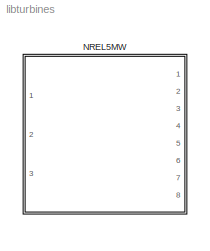
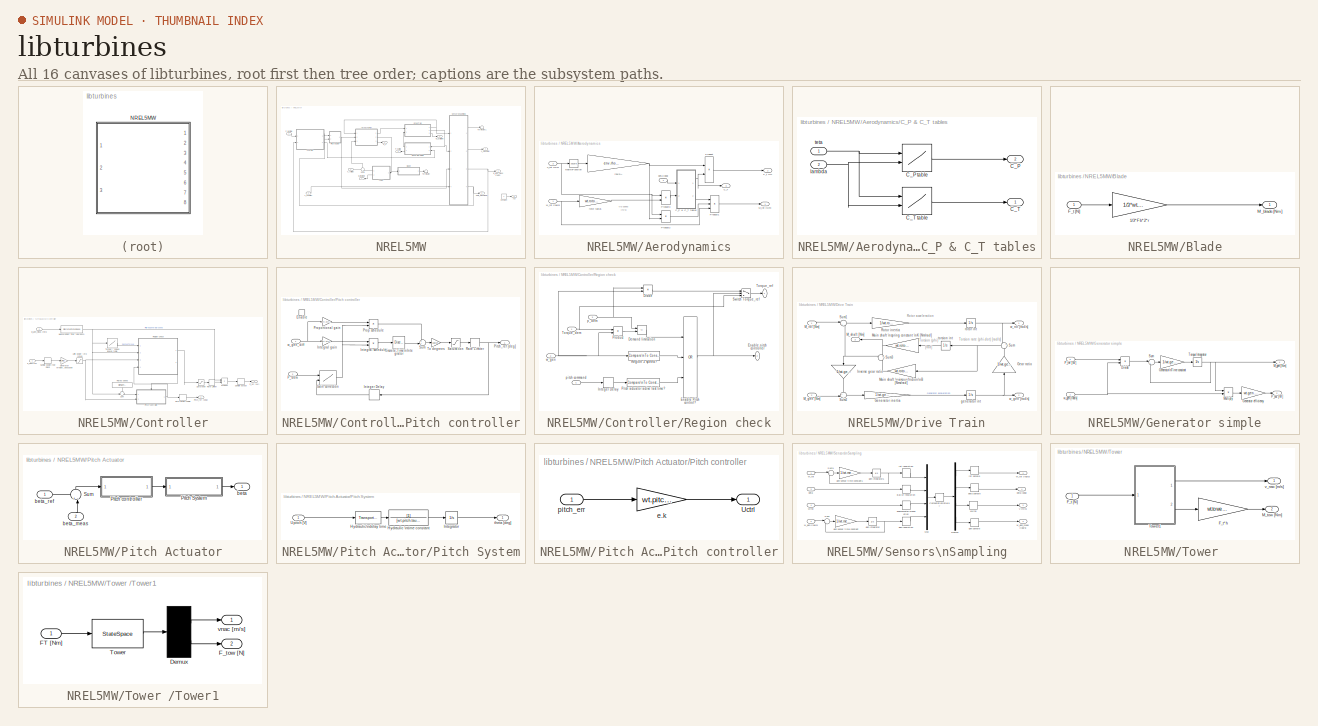
[diagram: thumbnail index - all 16 canvases of the model, root first then tree order]
MODEL libturbines
KIND library
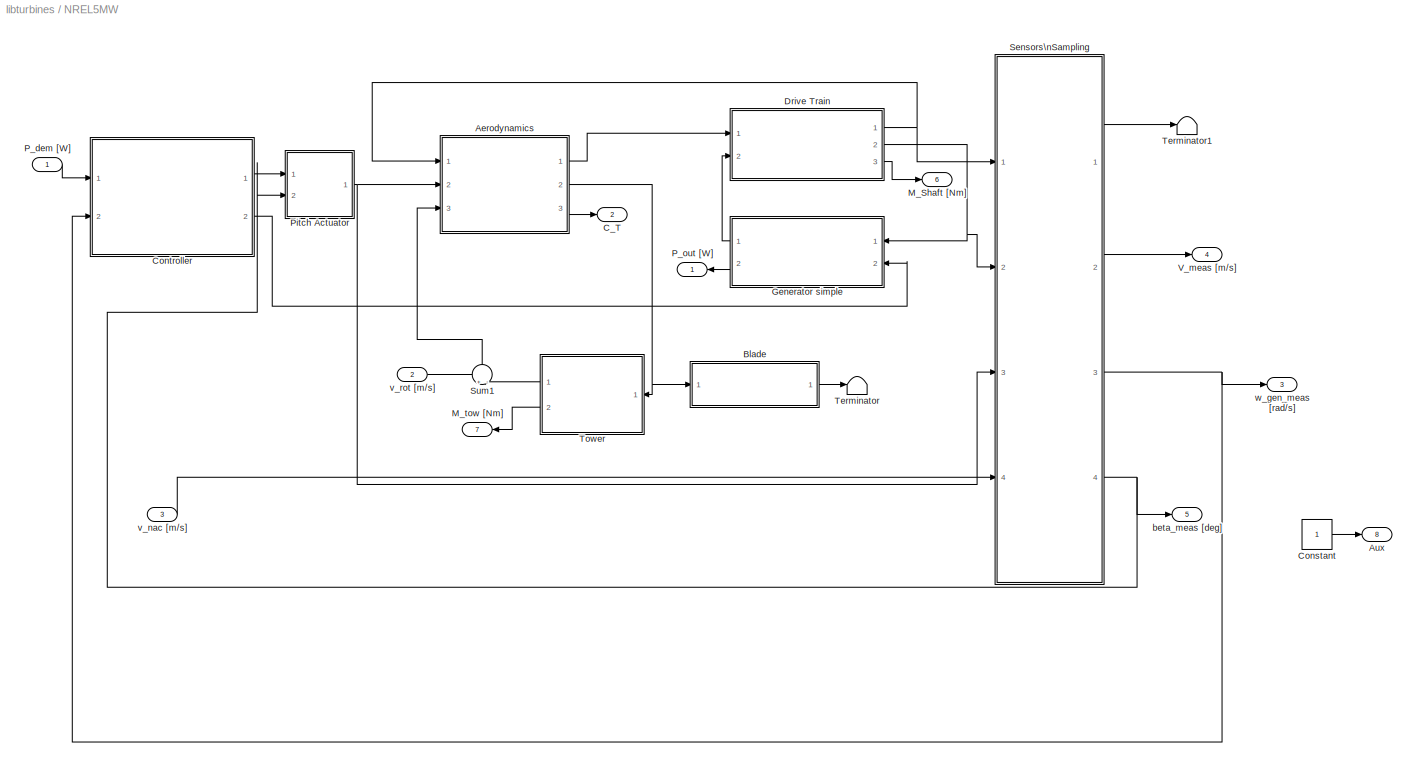
BLOCK [SubSystem] NREL5MW
  FunctionWithSeparateData = off
  MaskCallbackString = |||
  MaskDescription = NREL 5MW Virtual Turbine
  MaskDisplay = image(imread('NREL.png'))\n\nport_label('output',1,'P [W]')\nport_label('output',2,'CT')\nport_label('output',3,'w_gen [rad/s]')\nport_label('output',4,'v_nac [m/s]')\nport_label('output',5,'pitch [deg]')\nport_label('output',6,'M_shaft [Nm]')\nport_label('output',7,'M_tow [Nm]')\nport_label('output',8,'Aux')\n\nport_label('input',1,'P_max [W]')\nport_label('input',2,'v_rot [m/s]')\nport_label('in...<+25ch>
  MaskEnableString = on,on,on,on
  MaskHideContents = off
  MaskIconFrame = on
  MaskIconOpaque = on
  MaskIconRotate = none
  MaskIconUnits = autoscale
  MaskInitialization = %l=load(file);\nl=get_param(gcb,'UserData');\nenv=l.env;\nwt=l.wt;\nwt.ctrl.gen.ini=w_gen_ini;\n\n\nif(auto)\n    wt.ctrl.torq.ini=min(interp1(wt.ctrl.torq.wg,wt.ctrl.torq.M,w_gen_ini,'spline'),wt.ctrl.torq.lim);\nelse\n    wt.ctrl.torq.ini=torq_ini;\nend\n\nwt.pitch.ini=beta_ini;\nwt.ctrl.pitch.ini=beta_ini;\nwt.gen.torq.ini=wt.ctrl.torq.ini;\nwt.gen.ini=w_gen_ini;\nwt.rotor.ini=w_gen_ini/wt.gen....<+4ch>
  MaskPortRotate = default
  MaskPromptString = Initial generator velocity  [rad/s]|Initial blade pitch [degrees]|Auto initial torque|Initial generator torque
  MaskStyleString = edit,edit,checkbox,edit
  MaskToolTipString = on,on,on,on
  MaskTunableValueString = on,on,on,on
  MaskType = Wind Turbine
  MaskValueString = 50|0|off|0
  MaskVariables = w_gen_ini=@1;beta_ini=@2;auto=@3;torq_ini=@4;
  MaskVisibilityString = on,on,on,on
  MinAlgLoopOccurrences = off
  Opaque = off
  Ports = [3, 8]
  PropExecContextOutsideSubsystem = off
  RTWSystemCode = Auto
  RequestExecContextInheritance = off
  SID = 1
  UserData = DataTag0
  UserDataPersistent = on
BLOCK [SubSystem] NREL5MW/Aerodynamics
  FunctionWithSeparateData = off
  MaskHideContents = off
  MinAlgLoopOccurrences = off
  Opaque = off
  Ports = [3, 3]
  PropExecContextOutsideSubsystem = off
  RTWSystemCode = Auto
  RequestExecContextInheritance = off
  SID = 5
BLOCK [SubSystem] NREL5MW/Aerodynamics/C_P & C_T tables
  FunctionWithSeparateData = off
  MaskHideContents = off
  MinAlgLoopOccurrences = off
  Opaque = off
  Ports = [2, 2]
  PropExecContextOutsideSubsystem = off
  RTWSystemCode = Auto
  RequestExecContextInheritance = off
  SID = 9
BLOCK [Outport] NREL5MW/Aerodynamics/C_P & C_T tables/C_P
  IconDisplay = Port number
  Port = 2
  SID = 15
BLOCK [Lookup2D] NREL5MW/Aerodynamics/C_P & C_T tables/C_P table 
  ColumnIndex = wt.cp.tsr
  LookUpMeth = Interpolation-Use End Values
  RowIndex = wt.cp.beta
  SID = 12
  Table = wt.cp.table
BLOCK [Outport] NREL5MW/Aerodynamics/C_P & C_T tables/C_T
  IconDisplay = Port number
  SID = 14
BLOCK [Lookup2D] NREL5MW/Aerodynamics/C_P & C_T tables/C_T table
  ColumnIndex = wt.ct.tsr
  LookUpMeth = Interpolation-Use End Values
  RowIndex = wt.ct.beta
  SID = 13
  Table = wt.ct.table
BLOCK [Inport] NREL5MW/Aerodynamics/C_P & C_T tables/lambda
  IconDisplay = Port number
  Port = 2
  SID = 11
BLOCK [Inport] NREL5MW/Aerodynamics/C_P & C_T tables/teta
  IconDisplay = Port number
  SID = 10
BLOCK [Outport] NREL5MW/Aerodynamics/C_T
  IconDisplay = Port number
  Port = 3
  SID = 25
BLOCK [Outport] NREL5MW/Aerodynamics/F_t [N]
  IconDisplay = Port number
  Port = 2
  SID = 24
BLOCK [Outport] NREL5MW/Aerodynamics/M_rot [Nm]
  IconDisplay = Port number
  SID = 23
BLOCK [Math] NREL5MW/Aerodynamics/Math\nFunction
  Operator = square
  Ports = [1, 1]
  SID = 16
BLOCK [Product] NREL5MW/Aerodynamics/Product
  Ports = [2, 1]
  RndMeth = Floor
  SID = 17
BLOCK [Product] NREL5MW/Aerodynamics/Product1
  Inputs = **/
  Ports = [3, 1]
  RndMeth = Floor
  SID = 18
BLOCK [Product] NREL5MW/Aerodynamics/Product2
  Ports = [2, 1]
  RndMeth = Floor
  SID = 19
BLOCK [Product] NREL5MW/Aerodynamics/Product3
  Inputs = /*
  Ports = [2, 1]
  RndMeth = Floor
  SID = 20
BLOCK [Inport] NREL5MW/Aerodynamics/beta [deg]
  IconDisplay = Port number
  Port = 2
  SID = 7
BLOCK [Gain] NREL5MW/Aerodynamics/rho//2*A
  Gain = env.rho*.5* pi * wt.rotor.radius^2
  SID = 21
BLOCK [Gain] NREL5MW/Aerodynamics/rotor radius
  Gain = wt.rotor.radius
  SID = 22
BLOCK [Inport] NREL5MW/Aerodynamics/v_rot [m//s]
  IconDisplay = Port number
  Port = 3
  SID = 8
BLOCK [Inport] NREL5MW/Aerodynamics/w_rot [rad//s]
  IconDisplay = Port number
  SID = 6
BLOCK [Outport] NREL5MW/Aux
  IconDisplay = Port number
  Port = 8
  SID = 175
BLOCK [SubSystem] NREL5MW/Blade
  FunctionWithSeparateData = off
  MaskHideContents = off
  MinAlgLoopOccurrences = off
  Opaque = off
  Ports = [1, 1]
  PropExecContextOutsideSubsystem = off
  RTWSystemCode = Auto
  RequestExecContextInheritance = off
  SID = 27
BLOCK [Gain] NREL5MW/Blade/1//3*Fb*2*r
  Gain = 1/3*wt.rotor.radius*2
  SID = 29
BLOCK [Inport] NREL5MW/Blade/F_t [N]
  IconDisplay = Port number
  SID = 28
BLOCK [Outport] NREL5MW/Blade/M_blade [Nm]
  IconDisplay = Port number
  SID = 30
BLOCK [Outport] NREL5MW/C_T
  IconDisplay = Port number
  Port = 2
  SID = 169
BLOCK [Constant] NREL5MW/Constant
  SID = 31
BLOCK [SubSystem] NREL5MW/Controller
  FunctionWithSeparateData = off
  MaskHideContents = off
  MinAlgLoopOccurrences = off
  Opaque = off
  Ports = [2, 2]
  PropExecContextOutsideSubsystem = off
  RTWSystemCode = Auto
  RequestExecContextInheritance = off
  SID = 32
BLOCK [Gain] NREL5MW/Controller/Generator efficiency \ncompensation
  Gain = 1/wt.ctrl.gen.effeciency
  OutDataTypeStr = Inherit: Inherit via internal rule
  ParamDataTypeStr = Inherit: Inherit via internal rule
  SID = 35
  SaturateOnIntegerOverflow = off
BLOCK [Saturate] NREL5MW/Controller/Limit power \nto rated
  InputPortMap = u0
  LowerLimit = 0
  Ports = [1, 1]
  SID = 36
  UpperLimit = wt.ctrl.p_rated
BLOCK [DiscreteStateSpace] NREL5MW/Controller/Measurement filter (low pass)
  A = wt.ctrl.alpha
  B = 1-wt.ctrl.alpha
  C = wt.ctrl.alpha
  D = 1-wt.ctrl.alpha
  SID = 37
  SampleTime = wt.ctrl.Ts
  X0 = wt.ctrl.gen.ini
BLOCK [Inport] NREL5MW/Controller/P_dem [W]
  IconDisplay = Port number
  SID = 33
BLOCK [Outport] NREL5MW/Controller/P_ref [W]
  IconDisplay = Port number
  Port = 2
  SID = 79
BLOCK [SubSystem] NREL5MW/Controller/Pitch controller
  FunctionWithSeparateData = off
  MaskHideContents = off
  MinAlgLoopOccurrences = off
  Opaque = off
  Ports = [2, 1, 1]
  PropExecContextOutsideSubsystem = off
  RTWSystemCode = Auto
  RequestExecContextInheritance = off
  SID = 38
  TreatAsAtomicUnit = on
BLOCK [DiscreteIntegrator] NREL5MW/Controller/Pitch controller/Discrete-Time\nIntegrator
  ICPrevOutput = DiscIntNeverNeededParam
  ICPrevScaledInput = DiscIntNeverNeededParam
  LimitOutput = on
  LowerSaturationLimit = wt.ctrl.pitch.llim
  Ports = [1, 1]
  SID = 42
  SampleTime = wt.ctrl.Ts
  UpperSaturationLimit = wt.ctrl.pitch.ulim*pi/180
BLOCK [EnablePort] NREL5MW/Controller/Pitch controller/Enable
  Ports = []
  PropagateVarSize = During execution
  SID = 41
  StatesWhenEnabling = reset
BLOCK [Lookup2D] NREL5MW/Controller/Pitch controller/Gain correction
  ColumnIndex = wt.ctrl.pitch.beta
  InputSameDT = off
  LookUpMeth = Interpolation-Use End Values
  RowIndex = wt.ctrl.pitch.pwr
  SID = 43
  SaturateOnIntegerOverflow = off
  Table = wt.ctrl.pitch.gs
BLOCK [Delay] NREL5MW/Controller/Pitch controller/Integer Delay
  DelayLength = 1
  InputPortMap = u0
  InputProcessing = Inherited
  Ports = [1, 1]
  SID = 44
BLOCK [Gain] NREL5MW/Controller/Pitch controller/Integral gain
  Gain = wt.ctrl.pitch.Igain
  OutDataTypeStr = Inherit: Inherit via internal rule
  ParamDataTypeStr = Inherit: Inherit via internal rule
  SID = 45
  SaturateOnIntegerOverflow = off
BLOCK [Product] NREL5MW/Controller/Pitch controller/Integral schedule
  InputSameDT = off
  Inputs = */
  OutDataTypeStr = Inherit: Inherit via internal rule
  Ports = [2, 1]
  SID = 46
  SaturateOnIntegerOverflow = off
BLOCK [Inport] NREL5MW/Controller/Pitch controller/P_dem
  IconDisplay = Port number
  Port = 2
  SID = 40
BLOCK [Outport] NREL5MW/Controller/Pitch controller/Pitch_ref [deg]
  IconDisplay = Port number
  InitialOutput = wt.ctrl.torq.beta
  OutputWhenDisabled = reset
  SID = 53
BLOCK [Product] NREL5MW/Controller/Pitch controller/Prop schedule
  InputSameDT = off
  Inputs = */
  OutDataTypeStr = Inherit: Inherit via internal rule
  Ports = [2, 1]
  SID = 47
  SaturateOnIntegerOverflow = off
BLOCK [Gain] NREL5MW/Controller/Pitch controller/Proportional gain
  Gain = wt.ctrl.pitch.Pgain
  OutDataTypeStr = Inherit: Inherit via internal rule
  ParamDataTypeStr = Inherit: Inherit via internal rule
  SID = 48
  SaturateOnIntegerOverflow = off
BLOCK [RateLimiter] NREL5MW/Controller/Pitch controller/Rate Limiter
  FallingSlewLimit = -wt.ctrl.pitch.ratelim
  InitialCondition = wt.ctrl.pitch.ini
  RisingSlewLimit = wt.ctrl.pitch.ratelim
  SID = 49
  SampleTimeMode = inherited
BLOCK [Saturate] NREL5MW/Controller/Pitch controller/Saturation
  InputPortMap = u0
  LowerLimit = 0
  Ports = [1, 1]
  SID = 50
  UpperLimit = wt.ctrl.pitch.ulim
BLOCK [Sum] NREL5MW/Controller/Pitch controller/Sum
  IconShape = round
  InputSameDT = off
  Inputs = ++|
  OutDataTypeStr = Inherit: Inherit via internal rule
  Ports = [2, 1]
  SID = 51
  SaturateOnIntegerOverflow = off
BLOCK [Gain] NREL5MW/Controller/Pitch controller/To degrees
  Gain = 180/pi
  OutDataTypeStr = Inherit: Inherit via internal rule
  ParamDataTypeStr = Inherit: Inherit via internal rule
  SID = 52
  SaturateOnIntegerOverflow = off
BLOCK [Inport] NREL5MW/Controller/Pitch controller/w_gen_diff
  IconDisplay = Port number
  SID = 39
BLOCK [Outport] NREL5MW/Controller/Pitch_ref [deg]
  IconDisplay = Port number
  SID = 78
BLOCK [Product] NREL5MW/Controller/Product
  InputSameDT = off
  OutDataTypeStr = Inherit: Inherit via internal rule
  Ports = [2, 1]
  SID = 54
  SaturateOnIntegerOverflow = off
BLOCK [RateLimiter] NREL5MW/Controller/Rate Limiter
  FallingSlewLimit = -wt.ctrl.torq.ratelim
  InitialCondition = wt.ctrl.torq.ini
  RisingSlewLimit = wt.ctrl.torq.ratelim
  SID = 55
  SampleTimeMode = inherited
BLOCK [Constant] NREL5MW/Controller/Rated speed
  SID = 56
  Value = wt.ctrl.gen.rated
BLOCK [SubSystem] NREL5MW/Controller/Region check
  FunctionWithSeparateData = off
  MaskHideContents = off
  MinAlgLoopOccurrences = off
  Opaque = off
  Ports = [4, 2]
  PropExecContextOutsideSubsystem = off
  RTWSystemCode = Auto
  RequestExecContextInheritance = off
  SID = 57
BLOCK [RelationalOperator] NREL5MW/Controller/Region check/Demand limitation
  InputSameDT = off
  Operator = <=
  OutDataTypeStr = boolean
  Ports = [2, 1]
  SID = 62
BLOCK [Product] NREL5MW/Controller/Region check/Divide
  InputSameDT = off
  Inputs = */
  OutDataTypeStr = Inherit: Inherit via internal rule
  Ports = [2, 1]
  RndMeth = Floor
  SID = 63
  SaturateOnIntegerOverflow = off
BLOCK [Logic] NREL5MW/Controller/Region check/Enable Pitch control?
  AllPortsSameDT = off
  Inputs = 3
  Operator = OR
  OutDataTypeStr = boolean
  Ports = [3, 1]
  SID = 64
BLOCK [Outport] NREL5MW/Controller/Region check/Enable pitch controller
  IconDisplay = Port number
  Port = 2
  SID = 71
BLOCK [Delay] NREL5MW/Controller/Region check/Integer Delay
  DelayLength = 1
  InputPortMap = u0
  InputProcessing = Inherited
  Ports = [1, 1]
  SID = 65
BLOCK [Reference] NREL5MW/Controller/Region check/Pitch actuator active last time?  REF=simulink/Logic and Bit\nOperations/Compare\nTo Constant
  OutDataTypeStr = uint8
  Ports = [1, 1]
  SID = 66
  SourceBlock = simulink/Logic and Bit\nOperations/Compare\nTo Constant
  SourceType = Compare To Constant
  ZeroCross = off
  const = wt.ctrl.torq.beta
  relop = >
BLOCK [Product] NREL5MW/Controller/Region check/Product
  InputSameDT = off
  OutDataTypeStr = Inherit: Inherit via internal rule
  Ports = [2, 1]
  SID = 67
  SaturateOnIntegerOverflow = off
BLOCK [Reference] NREL5MW/Controller/Region check/Region 3 speed?  REF=simulink/Logic and Bit\nOperations/Compare\nTo Constant
  OutDataTypeStr = uint8
  Ports = [1, 1]
  SID = 68
  SourceBlock = simulink/Logic and Bit\nOperations/Compare\nTo Constant
  SourceType = Compare To Constant
  ZeroCross = off
  const = wt.ctrl.torq.r3
  relop = >=
BLOCK [Switch] NREL5MW/Controller/Region check/Switch Torque_ref
  InputSameDT = off
  SID = 69
  SaturateOnIntegerOverflow = off
  Threshold = 1
BLOCK [Inport] NREL5MW/Controller/Region check/Torque_dem
  IconDisplay = Port number
  SID = 58
BLOCK [Outport] NREL5MW/Controller/Region check/Torque_ref
  IconDisplay = Port number
  SID = 70
BLOCK [Inport] NREL5MW/Controller/Region check/p_dem
  IconDisplay = Port number
  Port = 3
  SID = 60
BLOCK [Inport] NREL5MW/Controller/Region check/pitch command
  IconDisplay = Port number
  Port = 4
  SID = 61
BLOCK [Inport] NREL5MW/Controller/Region check/w_gen
  IconDisplay = Port number
  Port = 2
  SID = 59
BLOCK [ZeroOrderHold] NREL5MW/Controller/Sample output
  SID = 72
  SampleTime = wt.ctrl.Ts
BLOCK [ZeroOrderHold] NREL5MW/Controller/Sample power\ndemand
  SID = 73
  SampleTime = wt.ctrl.Ts
BLOCK [Saturate] NREL5MW/Controller/Saturation
  InputPortMap = u0
  LowerLimit = 0
  Ports = [1, 1]
  SID = 74
  UpperLimit = wt.ctrl.torq.lim
BLOCK [Sum] NREL5MW/Controller/Sum
  IconShape = round
  InputSameDT = off
  Inputs = +-|
  OutDataTypeStr = Inherit: Inherit via internal rule
  Ports = [2, 1]
  SID = 75
  SaturateOnIntegerOverflow = off
BLOCK [Lookup] NREL5MW/Controller/Torque - speed lookup table
  InputValues = wt.ctrl.torq.wg
  LookUpMeth = Interpolation-Use End Values
  SID = 76
  SaturateOnIntegerOverflow = off
  Table = wt.ctrl.torq.M
BLOCK [ZeroOrderHold] NREL5MW/Controller/Zero-Order\nHold
  SID = 77
  SampleTime = wt.ctrl.Ts
BLOCK [Inport] NREL5MW/Controller/w_gen_meas [m//s]
  IconDisplay = Port number
  Port = 2
  SID = 34
BLOCK [SubSystem] NREL5MW/Drive Train
  FunctionWithSeparateData = off
  MaskHideContents = off
  MinAlgLoopOccurrences = off
  Opaque = off
  Ports = [2, 3]
  PropExecContextOutsideSubsystem = off
  RTWSystemCode = Auto
  RequestExecContextInheritance = off
  SID = 80
BLOCK [Gain] NREL5MW/Drive Train/Gear ratio
  Gain = 1/wt.gen.N
  OutDataTypeStr = Inherit: Inherit via internal rule
  ParamDataTypeStr = Inherit: Inherit via internal rule
  SID = 83
  SaturateOnIntegerOverflow = off
BLOCK [Gain] NREL5MW/Drive Train/Generator inertia
  Gain = 1/wt.gen.inertia
  OutDataTypeStr = Inherit: Inherit via internal rule
  ParamDataTypeStr = Inherit: Inherit via internal rule
  SID = 84
  SaturateOnIntegerOverflow = off
BLOCK [Gain] NREL5MW/Drive Train/Inverse gear ratio
  Gain = 1/wt.gen.N
  OutDataTypeStr = Inherit: Inherit via internal rule
  ParamDataTypeStr = Inherit: Inherit via internal rule
  SID = 85
  SaturateOnIntegerOverflow = off
BLOCK [Inport] NREL5MW/Drive Train/M_gen [Nm]
  IconDisplay = Port number
  Port = 2
  SID = 82
BLOCK [Inport] NREL5MW/Drive Train/M_rot [Nm]
  IconDisplay = Port number
  SID = 81
BLOCK [Outport] NREL5MW/Drive Train/M_shaft [Nm]
  IconDisplay = Port number
  Port = 3
  SID = 98
BLOCK [Gain] NREL5MW/Drive Train/Main shaft \nspring constant \nK [Nm//rad]
  Gain = wt.rotor.spring
  OutDataTypeStr = Inherit: Inherit via internal rule
  ParamDataTypeStr = Inherit: Inherit via internal rule
  SID = 86
  SaturateOnIntegerOverflow = off
BLOCK [Gain] NREL5MW/Drive Train/Main shaft \nviscous friction\nB [Nms//rad]
  Gain = wt.rotor.damp
  OutDataTypeStr = Inherit: Inherit via internal rule
  ParamDataTypeStr = Inherit: Inherit via internal rule
  SID = 87
  SaturateOnIntegerOverflow = off
BLOCK [Gain] NREL5MW/Drive Train/Rotor inertia
  Gain = 1/wt.rotor.inertia
  OutDataTypeStr = Inherit: Inherit via internal rule
  ParamDataTypeStr = Inherit: Inherit via internal rule
  SID = 88
  SaturateOnIntegerOverflow = off
BLOCK [Sum] NREL5MW/Drive Train/Sum
  IconShape = round
  InputSameDT = off
  Inputs = +|-
  OutDataTypeStr = Inherit: Inherit via internal rule
  Ports = [2, 1]
  SID = 89
  SaturateOnIntegerOverflow = off
BLOCK [Sum] NREL5MW/Drive Train/Sum1
  IconShape = round
  InputSameDT = off
  Inputs = |+-
  OutDataTypeStr = Inherit: Inherit via internal rule
  Ports = [2, 1]
  SID = 90
  SaturateOnIntegerOverflow = off
BLOCK [Sum] NREL5MW/Drive Train/Sum2
  IconShape = round
  InputSameDT = off
  Inputs = +-|
  OutDataTypeStr = Inherit: Inherit via internal rule
  Ports = [2, 1]
  SID = 91
  SaturateOnIntegerOverflow = off
BLOCK [Sum] NREL5MW/Drive Train/Sum3
  IconShape = round
  InputSameDT = off
  Inputs = +|+
  OutDataTypeStr = Inherit: Inherit via internal rule
  Ports = [2, 1]
  SID = 92
  SaturateOnIntegerOverflow = off
BLOCK [Integrator] NREL5MW/Drive Train/generator int
  InitialCondition = wt.gen.ini
  Ports = [1, 1]
  SID = 93
BLOCK [Integrator] NREL5MW/Drive Train/rotor int
  InitialCondition = wt.rotor.ini
  Ports = [1, 1]
  SID = 94
BLOCK [Integrator] NREL5MW/Drive Train/torsion int
  Ports = [1, 1]
  SID = 95
BLOCK [Outport] NREL5MW/Drive Train/w_gen [rad//s]
  IconDisplay = Port number
  Port = 2
  SID = 97
BLOCK [Outport] NREL5MW/Drive Train/w_rot [rad//s]
  IconDisplay = Port number
  SID = 96
BLOCK [SubSystem] NREL5MW/Generator simple
  FunctionWithSeparateData = off
  MaskHideContents = off
  MinAlgLoopOccurrences = off
  Opaque = off
  Ports = [2, 2]
  PropExecContextOutsideSubsystem = off
  RTWSystemCode = Auto
  RequestExecContextInheritance = off
  SID = 102
BLOCK [Product] NREL5MW/Generator simple/Divide
  InputSameDT = off
  Inputs = */
  OutDataTypeStr = Inherit: Inherit via internal rule
  Ports = [2, 1]
  RndMeth = Floor
  SID = 105
  SaturateOnIntegerOverflow = off
BLOCK [Gain] NREL5MW/Generator simple/Generator efficiency
  Gain = wt.gen.effeciency
  OutDataTypeStr = Inherit: Inherit via internal rule
  ParamDataTypeStr = Inherit: Inherit via internal rule
  SID = 107
  SaturateOnIntegerOverflow = off
BLOCK [Gain] NREL5MW/Generator simple/Generator\nTime constant
  Gain = 1/wt.gen.timeconstant
  OutDataTypeStr = Inherit: Inherit via internal rule
  ParamDataTypeStr = Inherit: Inherit via internal rule
  SID = 106
  SaturateOnIntegerOverflow = off
BLOCK [Outport] NREL5MW/Generator simple/M_gen [Nm]
  IconDisplay = Port number
  SID = 111
BLOCK [Product] NREL5MW/Generator simple/Multiply
  InputSameDT = off
  Inputs = **
  OutDataTypeStr = Inherit: Inherit via internal rule
  Ports = [2, 1]
  RndMeth = Floor
  SID = 108
  SaturateOnIntegerOverflow = off
BLOCK [Outport] NREL5MW/Generator simple/P_out [W]
  IconDisplay = Port number
  Port = 2
  SID = 112
BLOCK [Inport] NREL5MW/Generator simple/P_ref [W]
  IconDisplay = Port number
  Port = 2
  SID = 104
BLOCK [Sum] NREL5MW/Generator simple/Sum
  IconShape = round
  InputSameDT = off
  Inputs = |+-
  OutDataTypeStr = Inherit: Inherit via internal rule
  Ports = [2, 1]
  SID = 109
  SaturateOnIntegerOverflow = off
BLOCK [Integrator] NREL5MW/Generator simple/Torque Integrator
  InitialCondition = wt.gen.torq.ini
  Ports = [1, 1]
  SID = 110
BLOCK [Inport] NREL5MW/Generator simple/w_gen [rad//s]
  IconDisplay = Port number
  SID = 103
BLOCK [Outport] NREL5MW/M_Shaft [Nm]
  IconDisplay = Port number
  Port = 6
  SID = 173
BLOCK [Outport] NREL5MW/M_tow [Nm]
  IconDisplay = Port number
  Port = 7
  SID = 174
BLOCK [Inport] NREL5MW/P_dem [W]
  IconDisplay = Port number
  SID = 2
BLOCK [Outport] NREL5MW/P_out [W]
  IconDisplay = Port number
  SID = 168
BLOCK [SubSystem] NREL5MW/Pitch Actuator
  FunctionWithSeparateData = off
  MaskHideContents = off
  MinAlgLoopOccurrences = off
  Opaque = off
  Ports = [2, 1]
  PropExecContextOutsideSubsystem = off
  RTWSystemCode = Auto
  RequestExecContextInheritance = off
  SID = 113
BLOCK [SubSystem] NREL5MW/Pitch Actuator/Pitch System
  FunctionWithSeparateData = off
  MaskHideContents = off
  MinAlgLoopOccurrences = off
  Opaque = off
  Ports = [1, 1]
  PropExecContextOutsideSubsystem = off
  RTWSystemCode = Auto
  RequestExecContextInheritance = off
  SID = 116
BLOCK [TransferFcn] NREL5MW/Pitch Actuator/Pitch System/Hydraulic \ntime constant
  Denominator = [wt.pitch.tau 1]
  SID = 119
BLOCK [TransportDelay] NREL5MW/Pitch Actuator/Pitch System/Hydraulic\ndelay time
  DelayTime = wt.pitch.delay
  Ports = [1, 1]
  SID = 118
BLOCK [Integrator] NREL5MW/Pitch Actuator/Pitch System/Integrator
  InitialCondition = wt.pitch.ini
  Ports = [1, 1]
  SID = 120
BLOCK [Inport] NREL5MW/Pitch Actuator/Pitch System/Upitch [V]
  IconDisplay = Port number
  SID = 117
BLOCK [Outport] NREL5MW/Pitch Actuator/Pitch System/theta [deg]
  IconDisplay = Port number
  SID = 121
BLOCK [SubSystem] NREL5MW/Pitch Actuator/Pitch controller
  FunctionWithSeparateData = off
  MaskHideContents = off
  MinAlgLoopOccurrences = off
  Opaque = off
  Ports = [1, 1]
  PropExecContextOutsideSubsystem = off
  RTWSystemCode = Auto
  RequestExecContextInheritance = off
  SID = 122
BLOCK [Outport] NREL5MW/Pitch Actuator/Pitch controller/Uctrl
  IconDisplay = Port number
  SID = 125
BLOCK [Gain] NREL5MW/Pitch Actuator/Pitch controller/e.k
  Gain = wt.pitch.K
  SID = 124
BLOCK [Inport] NREL5MW/Pitch Actuator/Pitch controller/pitch_err
  IconDisplay = Port number
  SID = 123
BLOCK [Sum] NREL5MW/Pitch Actuator/Sum
  IconShape = round
  Inputs = +-|
  Ports = [2, 1]
  SID = 126
BLOCK [Outport] NREL5MW/Pitch Actuator/beta
  IconDisplay = Port number
  SID = 127
BLOCK [Inport] NREL5MW/Pitch Actuator/beta_meas
  IconDisplay = Port number
  Port = 2
  SID = 115
BLOCK [Inport] NREL5MW/Pitch Actuator/beta_ref
  IconDisplay = Port number
  SID = 114
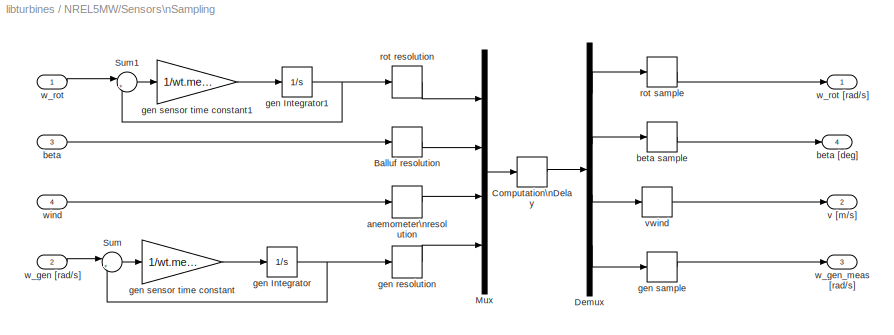
BLOCK [SubSystem] NREL5MW/Sensors\nSampling
  FunctionWithSeparateData = off
  MaskHideContents = off
  MinAlgLoopOccurrences = off
  Opaque = off
  Ports = [4, 4]
  PropExecContextOutsideSubsystem = off
  RTWSystemCode = Auto
  RequestExecContextInheritance = off
  SID = 128
BLOCK [Quantizer] NREL5MW/Sensors\nSampling/Balluf resolution
  QuantizationInterval = wt.meas.ballufres
  SID = 133
BLOCK [TransportDelay] NREL5MW/Sensors\nSampling/Computation\nDelay
  DelayTime = wt.meas.delay
  InitialOutput = [wt.rotor.ini wt.pitch.ini 0 wt.gen.ini]
  Ports = [1, 1]
  SID = 134
BLOCK [Demux] NREL5MW/Sensors\nSampling/Demux
  DisplayOption = bar
  Ports = [1, 4]
  SID = 135
BLOCK [Mux] NREL5MW/Sensors\nSampling/Mux
  DisplayOption = bar
  Ports = [4, 1]
  SID = 136
BLOCK [Sum] NREL5MW/Sensors\nSampling/Sum
  IconShape = round
  InputSameDT = off
  Inputs = |+-
  OutDataTypeStr = Inherit: Inherit via internal rule
  Ports = [2, 1]
  SID = 137
  SaturateOnIntegerOverflow = off
BLOCK [Sum] NREL5MW/Sensors\nSampling/Sum1
  IconShape = round
  InputSameDT = off
  Inputs = |+-
  OutDataTypeStr = Inherit: Inherit via internal rule
  Ports = [2, 1]
  SID = 138
  SaturateOnIntegerOverflow = off
BLOCK [Quantizer] NREL5MW/Sensors\nSampling/anemometer\nresolution
  QuantizationInterval = wt.meas.aneres
  SID = 139
BLOCK [Inport] NREL5MW/Sensors\nSampling/beta
  IconDisplay = Port number
  Port = 3
  SID = 131
BLOCK [Outport] NREL5MW/Sensors\nSampling/beta [deg]
  IconDisplay = Port number
  InitialOutput = 0
  Port = 4
  SID = 153
BLOCK [ZeroOrderHold] NREL5MW/Sensors\nSampling/beta sample
  SID = 140
  SampleTime = wt.meas.Ts
BLOCK [Integrator] NREL5MW/Sensors\nSampling/gen Integrator
  InitialCondition = wt.gen.ini
  Ports = [1, 1]
  SID = 141
BLOCK [Integrator] NREL5MW/Sensors\nSampling/gen Integrator1
  InitialCondition = wt.rotor.ini
  Ports = [1, 1]
  SID = 142
BLOCK [Quantizer] NREL5MW/Sensors\nSampling/gen resolution
  QuantizationInterval = wt.meas.genres
  SID = 143
BLOCK [ZeroOrderHold] NREL5MW/Sensors\nSampling/gen sample
  SID = 144
  SampleTime = wt.meas.Ts
BLOCK [Gain] NREL5MW/Sensors\nSampling/gen sensor time constant
  Gain = 1/wt.meas.gentau
  OutDataTypeStr = Inherit: Inherit via internal rule
  ParamDataTypeStr = Inherit: Inherit via internal rule
  SID = 145
  SaturateOnIntegerOverflow = off
BLOCK [Gain] NREL5MW/Sensors\nSampling/gen sensor time constant1
  Gain = 1/wt.meas.rottau
  OutDataTypeStr = Inherit: Inherit via internal rule
  ParamDataTypeStr = Inherit: Inherit via internal rule
  SID = 146
  SaturateOnIntegerOverflow = off
BLOCK [Quantizer] NREL5MW/Sensors\nSampling/rot resolution
  QuantizationInterval = wt.meas.rotres
  SID = 147
BLOCK [ZeroOrderHold] NREL5MW/Sensors\nSampling/rot sample
  SID = 148
  SampleTime = wt.meas.Ts
BLOCK [Outport] NREL5MW/Sensors\nSampling/v [m//s]
  IconDisplay = Port number
  InitialOutput = 0
  Port = 2
  SID = 151
BLOCK [ZeroOrderHold] NREL5MW/Sensors\nSampling/vwind
  SID = 149
  SampleTime = wt.meas.Ts
BLOCK [Inport] NREL5MW/Sensors\nSampling/w_gen [rad//s]
  IconDisplay = Port number
  Port = 2
  SID = 130
BLOCK [Outport] NREL5MW/Sensors\nSampling/w_gen_meas [rad//s]
  IconDisplay = Port number
  InitialOutput = 0
  Port = 3
  SID = 152
BLOCK [Inport] NREL5MW/Sensors\nSampling/w_rot 
  IconDisplay = Port number
  SID = 129
BLOCK [Outport] NREL5MW/Sensors\nSampling/w_rot [rad//s]
  IconDisplay = Port number
  InitialOutput = 0
  SID = 150
BLOCK [Inport] NREL5MW/Sensors\nSampling/wind
  IconDisplay = Port number
  Port = 4
  SID = 132
BLOCK [Sum] NREL5MW/Sum1
  IconShape = round
  Inputs = +|-
  Ports = [2, 1]
  SID = 154
BLOCK [Terminator] NREL5MW/Terminator
  SID = 155
BLOCK [Terminator] NREL5MW/Terminator1
  SID = 156
BLOCK [SubSystem] NREL5MW/Tower 
  FunctionWithSeparateData = off
  MaskHideContents = off
  MinAlgLoopOccurrences = off
  Opaque = off
  Ports = [1, 2]
  PropExecContextOutsideSubsystem = off
  RTWSystemCode = Auto
  RequestExecContextInheritance = off
  SID = 157
BLOCK [Inport] NREL5MW/Tower /F_t [N]
  IconDisplay = Port number
  SID = 158
BLOCK [Gain] NREL5MW/Tower /F_t*h
  Gain = wt.tower.height
  SID = 159
BLOCK [Outport] NREL5MW/Tower /M_tow [Nm]
  IconDisplay = Port number
  Port = 2
  SID = 167
BLOCK [SubSystem] NREL5MW/Tower /Tower1
  FunctionWithSeparateData = off
  MaskCallbackString = |||
  MaskDescription = Thrustwise dynamics of the tower
  MaskEnableString = on,on,on,on
  MaskHelp = The thrustwise tower dynamics are modelled as a linear oscillator
  MaskHideContents = off
  MaskIconFrame = on
  MaskIconOpaque = on
  MaskIconRotate = none
  MaskIconUnits = autoscale
  MaskInitialization = A = [-4*pi*dampY*ftowY,  -4*pi^2*ftowY^2  ; ...\n                    1                               0       ];\nB = [1/(mtop+mtow) ; ...\n          0];\nC = [1 0 ; ...\n    0 -4*pi^2*ftowY^2*(mtop+mtow)];\nD = zeros(2,1);\n
  MaskPortRotate = default
  MaskPromptString = Mass of towertop [kg]|Aequivalent tower mass [kg]|Tower eigenfrequency [Hz]|Damping coefficient
  MaskStyleString = edit,edit,edit,edit
  MaskToolTipString = on,on,on,on
  MaskTunableValueString = on,on,on,on
  MaskType = Tower (thrustwise)
  MaskValueString = wt.top.mass|wt.tower.mass|wt.tower.eigfreq|wt.tower.damp
  MaskVariables = mtop=@1;mtow=@2;ftowY=@3;dampY=@4;
  MaskVisibilityString = on,on,on,on
  MinAlgLoopOccurrences = off
  Opaque = off
  Ports = [1, 2]
  PropExecContextOutsideSubsystem = off
  RTWSystemCode = Auto
  RequestExecContextInheritance = off
  SID = 160
BLOCK [Demux] NREL5MW/Tower /Tower1/Demux
  Outputs = 2
  Ports = [1, 2]
  SID = 162
BLOCK [Inport] NREL5MW/Tower /Tower1/FT [Nm]
  IconDisplay = Port number
  SID = 161
BLOCK [Outport] NREL5MW/Tower /Tower1/F_tow [N]
  IconDisplay = Port number
  InitialOutput = 0
  Port = 2
  SID = 165
BLOCK [StateSpace] NREL5MW/Tower /Tower1/Tower
  A = A
  B = B
  C = C
  D = D
  SID = 163
  X0 = zeros(2,1)
BLOCK [Outport] NREL5MW/Tower /Tower1/vnac [m//s]
  IconDisplay = Port number
  InitialOutput = 0
  SID = 164
BLOCK [Outport] NREL5MW/Tower /v_nac [m//s]
  IconDisplay = Port number
  SID = 166
BLOCK [Outport] NREL5MW/V_meas [m//s]
  IconDisplay = Port number
  Port = 4
  SID = 171
BLOCK [Outport] NREL5MW/beta_meas [deg]
  IconDisplay = Port number
  Port = 5
  SID = 172
BLOCK [Inport] NREL5MW/v_nac [m//s]
  IconDisplay = Port number
  Port = 3
  SID = 4
BLOCK [Inport] NREL5MW/v_rot [m//s]
  IconDisplay = Port number
  Port = 2
  SID = 3
BLOCK [Outport] NREL5MW/w_gen_meas [rad//s]
  IconDisplay = Port number
  Port = 3
  SID = 170
ANNOTATION NREL5MW/Aerodynamics: tip speed\n[m/s]
ANNOTATION NREL5MW/Drive Train: Rotor acceleration
ANNOTATION NREL5MW/Drive Train: Torsion (phi)\n[rad]
ANNOTATION NREL5MW/Drive Train: Torsion rate (phi-dot) [rad/s]
LINE NREL5MW/Aerodynamics/C_P & C_T tables/C_P table :1 -> NREL5MW/Aerodynamics/C_P & C_T tables/C_P:1
LINE NREL5MW/Aerodynamics/C_P & C_T tables/C_T table:1 -> NREL5MW/Aerodynamics/C_P & C_T tables/C_T:1
NET NREL5MW/Aerodynamics/C_P & C_T tables/lambda:1 -> NREL5MW/Aerodynamics/C_P & C_T tables/C_P table :2, NREL5MW/Aerodynamics/C_P & C_T tables/C_T table:2
NET NREL5MW/Aerodynamics/C_P & C_T tables/teta:1 -> NREL5MW/Aerodynamics/C_P & C_T tables/C_P table :1, NREL5MW/Aerodynamics/C_P & C_T tables/C_T table:1
NET NREL5MW/Aerodynamics/C_P & C_T tables:1 -> NREL5MW/Aerodynamics/C_T:1, NREL5MW/Aerodynamics/Product:2
LINE NREL5MW/Aerodynamics/C_P & C_T tables:2 -> NREL5MW/Aerodynamics/Product1:1
LINE NREL5MW/Aerodynamics/Math\nFunction:1 -> NREL5MW/Aerodynamics/rho//2*A:1
LINE NREL5MW/Aerodynamics/Product1:1 -> NREL5MW/Aerodynamics/M_rot [Nm]:1
LINE NREL5MW/Aerodynamics/Product2:1 -> NREL5MW/Aerodynamics/Product1:2
LINE NREL5MW/Aerodynamics/Product3:1 -> NREL5MW/Aerodynamics/C_P & C_T tables:2
LINE NREL5MW/Aerodynamics/Product:1 -> NREL5MW/Aerodynamics/F_t [N]:1
LINE NREL5MW/Aerodynamics/beta [deg]:1 -> NREL5MW/Aerodynamics/C_P & C_T tables:1
NET NREL5MW/Aerodynamics/rho//2*A:1 -> NREL5MW/Aerodynamics/Product2:2, NREL5MW/Aerodynamics/Product:1
LINE NREL5MW/Aerodynamics/rotor radius:1 -> NREL5MW/Aerodynamics/Product3:2
NET NREL5MW/Aerodynamics/v_rot [m//s]:1 -> NREL5MW/Aerodynamics/Math\nFunction:1, NREL5MW/Aerodynamics/Product2:1, NREL5MW/Aerodynamics/Product3:1
NET NREL5MW/Aerodynamics/w_rot [rad//s]:1 -> NREL5MW/Aerodynamics/Product1:3, NREL5MW/Aerodynamics/rotor radius:1
LINE NREL5MW/Aerodynamics:1 -> NREL5MW/Drive Train:1
NET NREL5MW/Aerodynamics:2 -> NREL5MW/Blade:1, NREL5MW/Tower :1
LINE NREL5MW/Aerodynamics:3 -> NREL5MW/C_T:1
LINE NREL5MW/Blade/1//3*Fb*2*r:1 -> NREL5MW/Blade/M_blade [Nm]:1
LINE NREL5MW/Blade/F_t [N]:1 -> NREL5MW/Blade/1//3*Fb*2*r:1
LINE NREL5MW/Blade:1 -> NREL5MW/Terminator:1
LINE NREL5MW/Constant:1 -> NREL5MW/Aux:1
LINE NREL5MW/Controller/Generator efficiency \ncompensation:1 -> NREL5MW/Controller/Limit power \nto rated:1
NET NREL5MW/Controller/Limit power \nto rated:1 -> NREL5MW/Controller/Pitch controller:2, NREL5MW/Controller/Region check:3
NET NREL5MW/Controller/Measurement filter (low pass):1 -> NREL5MW/Controller/Product:1, NREL5MW/Controller/Region check:2, NREL5MW/Controller/Sum:2, NREL5MW/Controller/Torque - speed lookup table:1
LINE NREL5MW/Controller/P_dem [W]:1 -> NREL5MW/Controller/Sample power\ndemand:1
LINE NREL5MW/Controller/Pitch controller/Discrete-Time\nIntegrator:1 -> NREL5MW/Controller/Pitch controller/Sum:2
NET NREL5MW/Controller/Pitch controller/Gain correction:1 -> NREL5MW/Controller/Pitch controller/Integral schedule:2, NREL5MW/Controller/Pitch controller/Prop schedule:2
LINE NREL5MW/Controller/Pitch controller/Integer Delay:1 -> NREL5MW/Controller/Pitch controller/Gain correction:2
LINE NREL5MW/Controller/Pitch controller/Integral gain:1 -> NREL5MW/Controller/Pitch controller/Integral schedule:1
LINE NREL5MW/Controller/Pitch controller/Integral schedule:1 -> NREL5MW/Controller/Pitch controller/Discrete-Time\nIntegrator:1
LINE NREL5MW/Controller/Pitch controller/P_dem:1 -> NREL5MW/Controller/Pitch controller/Gain correction:1
LINE NREL5MW/Controller/Pitch controller/Prop schedule:1 -> NREL5MW/Controller/Pitch controller/Sum:1
LINE NREL5MW/Controller/Pitch controller/Proportional gain:1 -> NREL5MW/Controller/Pitch controller/Prop schedule:1
NET NREL5MW/Controller/Pitch controller/Rate Limiter:1 -> NREL5MW/Controller/Pitch controller/Integer Delay:1, NREL5MW/Controller/Pitch controller/Pitch_ref [deg]:1
LINE NREL5MW/Controller/Pitch controller/Saturation:1 -> NREL5MW/Controller/Pitch controller/Rate Limiter:1
LINE NREL5MW/Controller/Pitch controller/Sum:1 -> NREL5MW/Controller/Pitch controller/To degrees:1
LINE NREL5MW/Controller/Pitch controller/To degrees:1 -> NREL5MW/Controller/Pitch controller/Saturation:1
NET NREL5MW/Controller/Pitch controller/w_gen_diff:1 -> NREL5MW/Controller/Pitch controller/Integral gain:1, NREL5MW/Controller/Pitch controller/Proportional gain:1
NET NREL5MW/Controller/Pitch controller:1 -> NREL5MW/Controller/Region check:4, NREL5MW/Controller/Zero-Order\nHold:1
LINE NREL5MW/Controller/Product:1 -> NREL5MW/Controller/Sample output:1
LINE NREL5MW/Controller/Rate Limiter:1 -> NREL5MW/Controller/Product:2
LINE NREL5MW/Controller/Rated speed:1 -> NREL5MW/Controller/Sum:1
LINE NREL5MW/Controller/Region check/Demand limitation:1 -> NREL5MW/Controller/Region check/Enable Pitch control?:1
LINE NREL5MW/Controller/Region check/Divide:1 -> NREL5MW/Controller/Region check/Switch Torque_ref:1
NET NREL5MW/Controller/Region check/Enable Pitch control?:1 -> NREL5MW/Controller/Region check/Enable pitch controller:1, NREL5MW/Controller/Region check/Switch Torque_ref:2
LINE NREL5MW/Controller/Region check/Integer Delay:1 -> NREL5MW/Controller/Region check/Pitch actuator active last time?:1
LINE NREL5MW/Controller/Region check/Pitch actuator active last time?:1 -> NREL5MW/Controller/Region check/Enable Pitch control?:3
LINE NREL5MW/Controller/Region check/Product:1 -> NREL5MW/Controller/Region check/Demand limitation:2
LINE NREL5MW/Controller/Region check/Region 3 speed?:1 -> NREL5MW/Controller/Region check/Enable Pitch control?:2
LINE NREL5MW/Controller/Region check/Switch Torque_ref:1 -> NREL5MW/Controller/Region check/Torque_ref:1
NET NREL5MW/Controller/Region check/Torque_dem:1 -> NREL5MW/Controller/Region check/Product:1, NREL5MW/Controller/Region check/Switch Torque_ref:3
NET NREL5MW/Controller/Region check/p_dem:1 -> NREL5MW/Controller/Region check/Demand limitation:1, NREL5MW/Controller/Region check/Divide:1
LINE NREL5MW/Controller/Region check/pitch command:1 -> NREL5MW/Controller/Region check/Integer Delay:1
NET NREL5MW/Controller/Region check/w_gen:1 -> NREL5MW/Controller/Region check/Divide:2, NREL5MW/Controller/Region check/Product:2, NREL5MW/Controller/Region check/Region 3 speed?:1
LINE NREL5MW/Controller/Region check:1 -> NREL5MW/Controller/Saturation:1
LINE NREL5MW/Controller/Region check:2 -> NREL5MW/Controller/Pitch controller:enable
LINE NREL5MW/Controller/Sample output:1 -> NREL5MW/Controller/P_ref [W]:1
LINE NREL5MW/Controller/Sample power\ndemand:1 -> NREL5MW/Controller/Generator efficiency \ncompensation:1
LINE NREL5MW/Controller/Saturation:1 -> NREL5MW/Controller/Rate Limiter:1
LINE NREL5MW/Controller/Sum:1 -> NREL5MW/Controller/Pitch controller:1
LINE NREL5MW/Controller/Torque - speed lookup table:1 -> NREL5MW/Controller/Region check:1
LINE NREL5MW/Controller/Zero-Order\nHold:1 -> NREL5MW/Controller/Pitch_ref [deg]:1
LINE NREL5MW/Controller/w_gen_meas [m//s]:1 -> NREL5MW/Controller/Measurement filter (low pass):1
LINE NREL5MW/Controller:1 -> NREL5MW/Pitch Actuator:1
LINE NREL5MW/Controller:2 -> NREL5MW/Generator simple:2
LINE NREL5MW/Drive Train/Gear ratio:1 -> NREL5MW/Drive Train/Sum:2
LINE NREL5MW/Drive Train/Generator inertia:1 -> NREL5MW/Drive Train/generator int:1
LINE NREL5MW/Drive Train/Inverse gear ratio:1 -> NREL5MW/Drive Train/Sum2:1
LINE NREL5MW/Drive Train/M_gen [Nm]:1 -> NREL5MW/Drive Train/Sum2:2
LINE NREL5MW/Drive Train/M_rot [Nm]:1 -> NREL5MW/Drive Train/Sum1:1
NET NREL5MW/Drive Train/Main shaft \nspring constant \nK [Nm//rad]:1 -> NREL5MW/Drive Train/M_shaft [Nm]:1, NREL5MW/Drive Train/Sum3:1
LINE NREL5MW/Drive Train/Main shaft \nviscous friction\nB [Nms//rad]:1 -> NREL5MW/Drive Train/Sum3:2
LINE NREL5MW/Drive Train/Rotor inertia:1 -> NREL5MW/Drive Train/rotor int:1
LINE NREL5MW/Drive Train/Sum1:1 -> NREL5MW/Drive Train/Rotor inertia:1
LINE NREL5MW/Drive Train/Sum2:1 -> NREL5MW/Drive Train/Generator inertia:1
NET NREL5MW/Drive Train/Sum3:1 -> NREL5MW/Drive Train/Inverse gear ratio:1, NREL5MW/Drive Train/Sum1:2
NET NREL5MW/Drive Train/Sum:1 -> NREL5MW/Drive Train/Main shaft \nviscous friction\nB [Nms//rad]:1, NREL5MW/Drive Train/torsion int:1
NET NREL5MW/Drive Train/generator int:1 -> NREL5MW/Drive Train/Gear ratio:1, NREL5MW/Drive Train/w_gen [rad//s]:1
NET NREL5MW/Drive Train/rotor int:1 -> NREL5MW/Drive Train/Sum:1, NREL5MW/Drive Train/w_rot [rad//s]:1
LINE NREL5MW/Drive Train/torsion int:1 -> NREL5MW/Drive Train/Main shaft \nspring constant \nK [Nm//rad]:1
NET NREL5MW/Drive Train:1 -> NREL5MW/Aerodynamics:1, NREL5MW/Sensors\nSampling:1
NET NREL5MW/Drive Train:2 -> NREL5MW/Generator simple:1, NREL5MW/Sensors\nSampling:2
LINE NREL5MW/Drive Train:3 -> NREL5MW/M_Shaft [Nm]:1
LINE NREL5MW/Generator simple/Divide:1 -> NREL5MW/Generator simple/Sum:1
LINE NREL5MW/Generator simple/Generator efficiency:1 -> NREL5MW/Generator simple/P_out [W]:1
LINE NREL5MW/Generator simple/Generator\nTime constant:1 -> NREL5MW/Generator simple/Torque Integrator:1
LINE NREL5MW/Generator simple/Multiply:1 -> NREL5MW/Generator simple/Generator efficiency:1
LINE NREL5MW/Generator simple/P_ref [W]:1 -> NREL5MW/Generator simple/Divide:1
LINE NREL5MW/Generator simple/Sum:1 -> NREL5MW/Generator simple/Generator\nTime constant:1
NET NREL5MW/Generator simple/Torque Integrator:1 -> NREL5MW/Generator simple/M_gen [Nm]:1, NREL5MW/Generator simple/Multiply:1, NREL5MW/Generator simple/Sum:2
NET NREL5MW/Generator simple/w_gen [rad//s]:1 -> NREL5MW/Generator simple/Divide:2, NREL5MW/Generator simple/Multiply:2
LINE NREL5MW/Generator simple:1 -> NREL5MW/Drive Train:2
LINE NREL5MW/Generator simple:2 -> NREL5MW/P_out [W]:1
LINE NREL5MW/P_dem [W]:1 -> NREL5MW/Controller:1
LINE NREL5MW/Pitch Actuator/Pitch System/Hydraulic \ntime constant:1 -> NREL5MW/Pitch Actuator/Pitch System/Integrator:1
LINE NREL5MW/Pitch Actuator/Pitch System/Hydraulic\ndelay time:1 -> NREL5MW/Pitch Actuator/Pitch System/Hydraulic \ntime constant:1
LINE NREL5MW/Pitch Actuator/Pitch System/Integrator:1 -> NREL5MW/Pitch Actuator/Pitch System/theta [deg]:1
LINE NREL5MW/Pitch Actuator/Pitch System/Upitch [V]:1 -> NREL5MW/Pitch Actuator/Pitch System/Hydraulic\ndelay time:1
LINE NREL5MW/Pitch Actuator/Pitch System:1 -> NREL5MW/Pitch Actuator/beta:1
LINE NREL5MW/Pitch Actuator/Pitch controller/e.k:1 -> NREL5MW/Pitch Actuator/Pitch controller/Uctrl:1
LINE NREL5MW/Pitch Actuator/Pitch controller/pitch_err:1 -> NREL5MW/Pitch Actuator/Pitch controller/e.k:1
LINE NREL5MW/Pitch Actuator/Pitch controller:1 -> NREL5MW/Pitch Actuator/Pitch System:1
LINE NREL5MW/Pitch Actuator/Sum:1 -> NREL5MW/Pitch Actuator/Pitch controller:1
LINE NREL5MW/Pitch Actuator/beta_meas:1 -> NREL5MW/Pitch Actuator/Sum:2
LINE NREL5MW/Pitch Actuator/beta_ref:1 -> NREL5MW/Pitch Actuator/Sum:1
NET NREL5MW/Pitch Actuator:1 -> NREL5MW/Aerodynamics:2, NREL5MW/Sensors\nSampling:3
LINE NREL5MW/Sensors\nSampling/Balluf resolution:1 -> NREL5MW/Sensors\nSampling/Mux:2
LINE NREL5MW/Sensors\nSampling/Computation\nDelay:1 -> NREL5MW/Sensors\nSampling/Demux:1
LINE NREL5MW/Sensors\nSampling/Demux:1 -> NREL5MW/Sensors\nSampling/rot sample:1
LINE NREL5MW/Sensors\nSampling/Demux:2 -> NREL5MW/Sensors\nSampling/beta sample:1
LINE NREL5MW/Sensors\nSampling/Demux:3 -> NREL5MW/Sensors\nSampling/vwind:1
LINE NREL5MW/Sensors\nSampling/Demux:4 -> NREL5MW/Sensors\nSampling/gen sample:1
LINE NREL5MW/Sensors\nSampling/Mux:1 -> NREL5MW/Sensors\nSampling/Computation\nDelay:1
LINE NREL5MW/Sensors\nSampling/Sum1:1 -> NREL5MW/Sensors\nSampling/gen sensor time constant1:1
LINE NREL5MW/Sensors\nSampling/Sum:1 -> NREL5MW/Sensors\nSampling/gen sensor time constant:1
LINE NREL5MW/Sensors\nSampling/anemometer\nresolution:1 -> NREL5MW/Sensors\nSampling/Mux:3
LINE NREL5MW/Sensors\nSampling/beta sample:1 -> NREL5MW/Sensors\nSampling/beta [deg]:1
LINE NREL5MW/Sensors\nSampling/beta:1 -> NREL5MW/Sensors\nSampling/Balluf resolution:1
NET NREL5MW/Sensors\nSampling/gen Integrator1:1 -> NREL5MW/Sensors\nSampling/Sum1:2, NREL5MW/Sensors\nSampling/rot resolution:1
NET NREL5MW/Sensors\nSampling/gen Integrator:1 -> NREL5MW/Sensors\nSampling/Sum:2, NREL5MW/Sensors\nSampling/gen resolution:1
LINE NREL5MW/Sensors\nSampling/gen resolution:1 -> NREL5MW/Sensors\nSampling/Mux:4
LINE NREL5MW/Sensors\nSampling/gen sample:1 -> NREL5MW/Sensors\nSampling/w_gen_meas [rad//s]:1
LINE NREL5MW/Sensors\nSampling/gen sensor time constant1:1 -> NREL5MW/Sensors\nSampling/gen Integrator1:1
LINE NREL5MW/Sensors\nSampling/gen sensor time constant:1 -> NREL5MW/Sensors\nSampling/gen Integrator:1
LINE NREL5MW/Sensors\nSampling/rot resolution:1 -> NREL5MW/Sensors\nSampling/Mux:1
LINE NREL5MW/Sensors\nSampling/rot sample:1 -> NREL5MW/Sensors\nSampling/w_rot [rad//s]:1
LINE NREL5MW/Sensors\nSampling/vwind:1 -> NREL5MW/Sensors\nSampling/v [m//s]:1
LINE NREL5MW/Sensors\nSampling/w_gen [rad//s]:1 -> NREL5MW/Sensors\nSampling/Sum:1
LINE NREL5MW/Sensors\nSampling/w_rot :1 -> NREL5MW/Sensors\nSampling/Sum1:1
LINE NREL5MW/Sensors\nSampling/wind:1 -> NREL5MW/Sensors\nSampling/anemometer\nresolution:1
LINE NREL5MW/Sensors\nSampling:1 -> NREL5MW/Terminator1:1
LINE NREL5MW/Sensors\nSampling:2 -> NREL5MW/V_meas [m//s]:1
NET NREL5MW/Sensors\nSampling:3 -> NREL5MW/Controller:2, NREL5MW/w_gen_meas [rad//s]:1
NET NREL5MW/Sensors\nSampling:4 -> NREL5MW/Pitch Actuator:2, NREL5MW/beta_meas [deg]:1
LINE NREL5MW/Sum1:1 -> NREL5MW/Aerodynamics:3
LINE NREL5MW/Tower /F_t [N]:1 -> NREL5MW/Tower /Tower1:1
LINE NREL5MW/Tower /F_t*h:1 -> NREL5MW/Tower /M_tow [Nm]:1
LINE NREL5MW/Tower /Tower1/Demux:1 -> NREL5MW/Tower /Tower1/vnac [m//s]:1
LINE NREL5MW/Tower /Tower1/Demux:2 -> NREL5MW/Tower /Tower1/F_tow [N]:1
LINE NREL5MW/Tower /Tower1/FT [Nm]:1 -> NREL5MW/Tower /Tower1/Tower:1
LINE NREL5MW/Tower /Tower1/Tower:1 -> NREL5MW/Tower /Tower1/Demux:1
LINE NREL5MW/Tower /Tower1:1 -> NREL5MW/Tower /v_nac [m//s]:1
LINE NREL5MW/Tower /Tower1:2 -> NREL5MW/Tower /F_t*h:1
LINE NREL5MW/Tower :1 -> NREL5MW/Sum1:2
LINE NREL5MW/Tower :2 -> NREL5MW/M_tow [Nm]:1
LINE NREL5MW/v_nac [m//s]:1 -> NREL5MW/Sensors\nSampling:4
LINE NREL5MW/v_rot [m//s]:1 -> NREL5MW/Sum1:1
note: NET lines group one-source signal fan-out (src -> all destinations, sorted); 1:1 wires keep LINE
